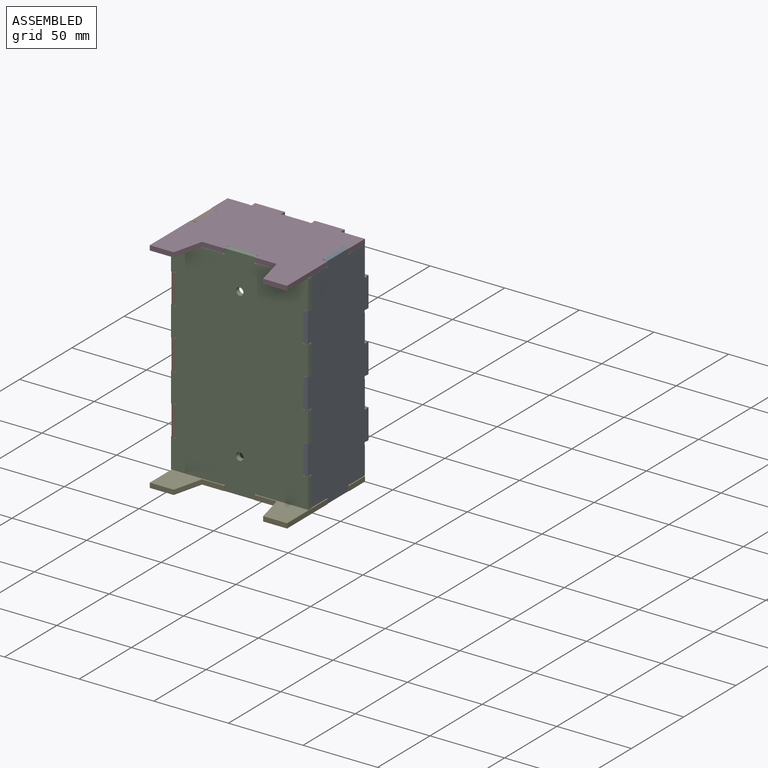
[diagram: assembled view]
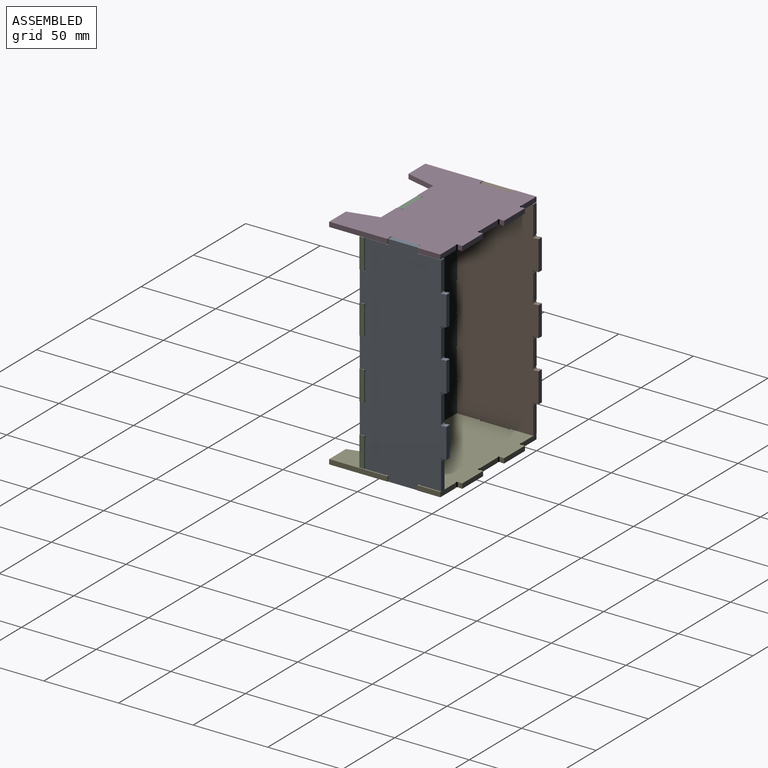
[diagram: assembled view, second angle]
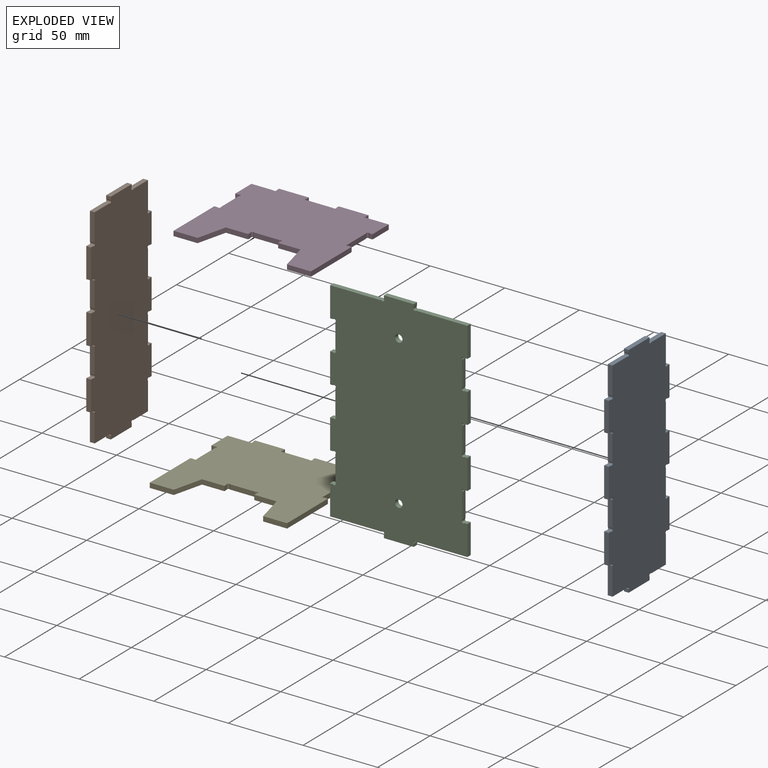
[diagram: exploded view]
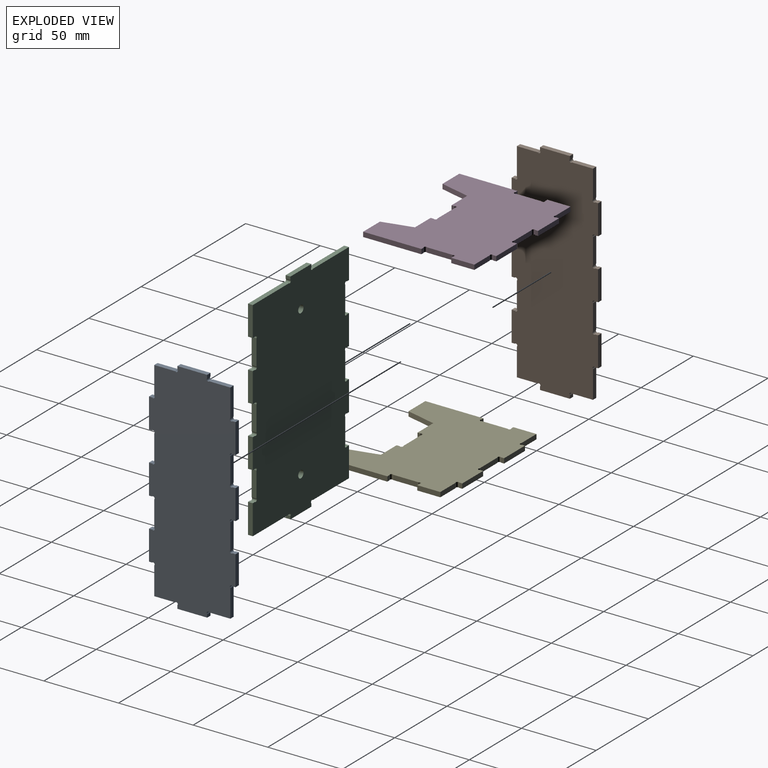
[diagram: exploded view, second angle]
ASSEMBLY  parts=5 mates=4
PART A: 54 faces, bbox 58x147x3.2 mm
  f0: plane 3.2x2.09mm, normal (0,1,0), area 6.7mm2, adj f1,f51,f52,f53
  f1: plane 20x3.2mm, normal (-1,0,0), area 64mm2, adj f0,f2,f52,f53
  f2: plane 3.2x2.08mm, normal (0,-1,0), area 6.6mm2, adj f1,f3,f52,f53
  f3: cylinder r=1.01mm len=3.2mm, axis (0,0,-1), area 10.2mm2, adj f2,f4,f52,f53
  f4: plane 17.14x3.2mm, normal (-1,0,0), area 54.9mm2, adj f3,f5,f52,f53
  f5: cylinder r=1.01mm len=3.2mm, axis (0,0,-1), area 10.2mm2, adj f4,f6,f52,f53
  f6: plane 3.2x2.08mm, normal (0,1,0), area 6.7mm2, adj f5,f7,f52,f53
  f7: plane 20x3.2mm, normal (-1,0,0), area 64mm2, adj f6,f8,f52,f53
  f8: plane 3.2x2.09mm, normal (0,-1,0), area 6.7mm2, adj f7,f9,f52,f53
  f9: extruded ~3.2x1.72mm, area 10.2mm2, adj f8,f10,f52,f53
  f10: plane 17.14x3.2mm, normal (-1,0,0), area 54.9mm2, adj f9,f11,f52,f53
  f11: extruded ~3.2x1.72mm, area 10.2mm2, adj f10,f12,f52,f53
  f12: plane 3.2x2.07mm, normal (0,1,0), area 6.6mm2, adj f11,f13,f52,f53
  f13: plane 20x3.2mm, normal (-1,0,0), area 64mm2, adj f12,f14,f52,f53
  f14: plane 3.2x2.07mm, normal (0,-1,0), area 6.6mm2, adj f13,f15,f52,f53
  f15: cylinder r=1.01mm len=3.2mm, axis (0,0,-1), area 10.2mm2, adj f14,f16,f52,f53
  f16: plane 18.57x3.2mm, normal (-1,0,0), area 59.4mm2, adj f15,f17,f52,f53
  f17: plane 14.07x3.2mm, normal (0,-1,0), area 45mm2, adj f16,f18,f52,f53
  f18: cylinder r=1.01mm len=3.2mm, axis (0,0,-1), area 10.2mm2, adj f17,f19,f52,f53
  f19: plane 3.2x2.07mm, normal (-1,0,0), area 6.6mm2, adj f18,f20,f52,f53
  f20: plane 20x3.2mm, normal (0,-1,0), area 64mm2, adj f19,f21,f52,f53
  f21: plane 3.2x2.07mm, normal (1,0,0), area 6.6mm2, adj f20,f22,f52,f53
  f22: cylinder r=1.01mm len=3.2mm, axis (0,0,-1), area 10.2mm2, adj f21,f23,f52,f53
  f23: plane 14.07x3.2mm, normal (0,-1,0), area 45mm2, adj f22,f24,f52,f53
  f24: plane 18.57x3.2mm, normal (1,0,0), area 59.4mm2, adj f23,f25,f52,f53
  f25: cylinder r=1.01mm len=3.2mm, axis (0,0,-1), area 10.2mm2, adj f24,f26,f52,f53
  f26: plane 3.2x2.07mm, normal (0,-1,0), area 6.6mm2, adj f25,f27,f52,f53
  f27: plane 20x3.2mm, normal (1,0,0), area 64mm2, adj f26,f28,f52,f53
  f28: plane 3.2x2.07mm, normal (0,1,0), area 6.6mm2, adj f27,f29,f52,f53
  f29: cylinder r=1.01mm len=3.2mm, axis (0,0,-1), area 10.2mm2, adj f28,f30,f52,f53
  f30: plane 17.14x3.2mm, normal (1,0,0), area 54.9mm2, adj f29,f31,f52,f53
  f31: cylinder r=1.01mm len=3.2mm, axis (0,0,-1), area 10.2mm2, adj f30,f32,f52,f53
  f32: plane 3.2x2.07mm, normal (0,-1,0), area 6.6mm2, adj f31,f33,f52,f53
  f33: plane 20x3.2mm, normal (1,0,0), area 64mm2, adj f32,f34,f52,f53
  f34: plane 3.2x2.07mm, normal (0,1,0), area 6.6mm2, adj f33,f35,f52,f53
  f35: cylinder r=1.01mm len=3.2mm, axis (0,0,-1), area 10.2mm2, adj f34,f36,f52,f53
  f36: plane 17.14x3.2mm, normal (1,0,0), area 54.9mm2, adj f35,f37,f52,f53
  f37: cylinder r=1.01mm len=3.2mm, axis (0,0,-1), area 10.2mm2, adj f36,f38,f52,f53
  f38: plane 3.2x2.07mm, normal (0,-1,0), area 6.6mm2, adj f37,f39,f52,f53
  f39: plane 20x3.2mm, normal (1,0,0), area 64mm2, adj f38,f40,f52,f53
  f40: plane 3.2x2.07mm, normal (0,1,0), area 6.6mm2, adj f39,f41,f52,f53
  f41: cylinder r=1.01mm len=3.2mm, axis (0,0,-1), area 10.2mm2, adj f40,f42,f52,f53
  f42: plane 18.57x3.2mm, normal (1,0,0), area 59.4mm2, adj f41,f43,f52,f53
  f43: plane 14.07x3.2mm, normal (0,1,0), area 45mm2, adj f42,f44,f52,f53
  f44: cylinder r=1.01mm len=3.2mm, axis (0,0,-1), area 10.2mm2, adj f43,f45,f52,f53
  f45: plane 3.2x2.07mm, normal (1,0,0), area 6.6mm2, adj f44,f46,f52,f53
  f46: plane 20x3.2mm, normal (0,1,0), area 64mm2, adj f45,f47,f52,f53
  f47: plane 3.2x2.07mm, normal (-1,0,0), area 6.6mm2, adj f46,f48,f52,f53
  f48: cylinder r=1.01mm len=3.2mm, axis (0,0,-1), area 10.2mm2, adj f47,f49,f52,f53
  f49: plane 14.07x3.2mm, normal (0,1,0), area 45mm2, adj f48,f50,f52,f53
  f50: plane 18.57x3.2mm, normal (-1,0,0), area 59.4mm2, adj f49,f51,f52,f53
  f51: extruded ~3.2x1.72mm, area 10.2mm2, adj f0,f50,f52,f53
  f52: plane 147x58.02mm, normal (0,0,1), area 7691.2mm2, adj f0,f1,f2,f3,f4,f5,f6,f7
  f53: plane 147x58.02mm, normal (0,0,-1), area 7691.2mm2, adj f0,f1,f2,f3,f4,f5,f6,f7
PART B: same geometry as A
PART C: 56 faces, bbox 92x147x3.2 mm
  f0: plane 20x3.2mm, normal (0,-1,0), area 64mm2, adj f1,f51,f54,f55
  f1: plane 3.2x2.07mm, normal (1,0,0), area 6.6mm2, adj f0,f2,f54,f55
  f2: cylinder r=1.01mm len=3.2mm, axis (0,0,-1), area 10.2mm2, adj f1,f3,f54,f55
  f3: plane 34.57x3.2mm, normal (0,-1,0), area 110.6mm2, adj f2,f4,f54,f55
  f4: plane 20x3.2mm, normal (1,0,0), area 64mm2, adj f3,f5,f54,f55
  f5: plane 3.2x2.07mm, normal (0,1,0), area 6.6mm2, adj f4,f6,f54,f55
  f6: cylinder r=1.01mm len=3.2mm, axis (0,0,-1), area 10.2mm2, adj f5,f7,f54,f55
  f7: plane 17.14x3.2mm, normal (1,0,0), area 54.9mm2, adj f6,f8,f54,f55
  f8: cylinder r=1.01mm len=3.2mm, axis (0,0,-1), area 10.2mm2, adj f7,f9,f54,f55
  f9: plane 3.2x2.07mm, normal (0,-1,0), area 6.6mm2, adj f8,f10,f54,f55
  f10: plane 20x3.2mm, normal (1,0,0), area 64mm2, adj f9,f11,f54,f55
  f11: plane 3.2x2.07mm, normal (0,1,0), area 6.6mm2, adj f10,f12,f54,f55
  f12: cylinder r=1.01mm len=3.2mm, axis (0,0,-1), area 10.2mm2, adj f11,f13,f54,f55
  f13: plane 17.14x3.2mm, normal (1,0,0), area 54.9mm2, adj f12,f14,f54,f55
  f14: cylinder r=1.01mm len=3.2mm, axis (0,0,-1), area 10.2mm2, adj f13,f15,f54,f55
  f15: plane 3.2x2.07mm, normal (0,-1,0), area 6.6mm2, adj f14,f16,f54,f55
  f16: plane 20x3.2mm, normal (1,0,0), area 64mm2, adj f15,f17,f54,f55
  f17: plane 3.2x2.07mm, normal (0,1,0), area 6.6mm2, adj f16,f18,f54,f55
  f18: cylinder r=1.01mm len=3.2mm, axis (0,0,-1), area 10.2mm2, adj f17,f19,f54,f55
  f19: plane 17.14x3.2mm, normal (1,0,0), area 54.9mm2, adj f18,f20,f54,f55
  f20: cylinder r=1.01mm len=3.2mm, axis (0,0,-1), area 10.2mm2, adj f19,f21,f54,f55
  f21: plane 3.2x2.07mm, normal (0,-1,0), area 6.6mm2, adj f20,f22,f54,f55
  f22: plane 20x3.2mm, normal (1,0,0), area 64mm2, adj f21,f23,f54,f55
  f23: plane 34.57x3.2mm, normal (0,1,0), area 110.6mm2, adj f22,f24,f54,f55
  f24: cylinder r=1.01mm len=3.2mm, axis (0,0,-1), area 10.2mm2, adj f23,f25,f54,f55
  f25: plane 3.2x2.07mm, normal (1,0,0), area 6.6mm2, adj f24,f26,f54,f55
  f26: plane 20x3.2mm, normal (0,1,0), area 64mm2, adj f25,f27,f54,f55
  f27: plane 3.2x2.07mm, normal (-1,0,0), area 6.6mm2, adj f26,f28,f54,f55
  f28: cylinder r=1.01mm len=3.2mm, axis (0,0,-1), area 10.2mm2, adj f27,f29,f54,f55
  f29: plane 34.57x3.2mm, normal (0,1,0), area 110.6mm2, adj f28,f30,f54,f55
  f30: plane 20x3.2mm, normal (-1,0,0), area 64mm2, adj f29,f31,f54,f55
  f31: plane 3.2x2.07mm, normal (0,-1,0), area 6.6mm2, adj f30,f32,f54,f55
  f32: cylinder r=1.01mm len=3.2mm, axis (0,0,-1), area 10.2mm2, adj f31,f33,f54,f55
  f33: plane 17.14x3.2mm, normal (-1,0,0), area 54.9mm2, adj f32,f34,f54,f55
  f34: cylinder r=1.01mm len=3.2mm, axis (0,0,-1), area 10.2mm2, adj f33,f35,f54,f55
  f35: plane 3.2x2.07mm, normal (0,1,0), area 6.6mm2, adj f34,f36,f54,f55
  f36: plane 20x3.2mm, normal (-1,0,0), area 64mm2, adj f35,f37,f54,f55
  f37: plane 3.2x2.07mm, normal (0,-1,0), area 6.6mm2, adj f36,f38,f54,f55
  f38: cylinder r=1.01mm len=3.2mm, axis (0,0,-1), area 10.2mm2, adj f37,f39,f54,f55
  f39: plane 17.14x3.2mm, normal (-1,0,0), area 54.9mm2, adj f38,f40,f54,f55
  f40: cylinder r=1.01mm len=3.2mm, axis (0,0,-1), area 10.2mm2, adj f39,f41,f54,f55
  f41: plane 3.2x2.07mm, normal (0,1,0), area 6.6mm2, adj f40,f42,f54,f55
  f42: plane 20x3.2mm, normal (-1,0,0), area 64mm2, adj f41,f43,f54,f55
  f43: plane 3.2x2.07mm, normal (0,-1,0), area 6.6mm2, adj f42,f44,f54,f55
  f44: cylinder r=1.01mm len=3.2mm, axis (0,0,-1), area 10.2mm2, adj f43,f45,f54,f55
  f45: plane 17.14x3.2mm, normal (-1,0,0), area 54.9mm2, adj f44,f46,f54,f55
  f46: cylinder r=1.01mm len=3.2mm, axis (0,0,-1), area 10.2mm2, adj f45,f47,f54,f55
  f47: plane 3.2x2.07mm, normal (0,1,0), area 6.6mm2, adj f46,f48,f54,f55
  f48: plane 20x3.2mm, normal (-1,0,0), area 64mm2, adj f47,f49,f54,f55
  f49: plane 34.57x3.2mm, normal (0,-1,0), area 110.6mm2, adj f48,f50,f54,f55
  f50: cylinder r=1.01mm len=3.2mm, axis (0,0,-1), area 10.2mm2, adj f49,f51,f54,f55
  f51: plane 3.2x2.07mm, normal (-1,0,0), area 6.6mm2, adj f0,f50,f54,f55
  f52: cylinder r=2.5mm len=5mm, axis (0,0,-1), area 50.3mm2, adj f54,f55
  f53: cylinder r=2.5mm len=5mm, axis (0,0,-1), area 50.3mm2, adj f54,f55
  f54: plane 147x92mm, normal (0,0,1), area 12551.4mm2, adj f0,f1,f2,f3,f4,f5,f6,f7
  f55: plane 147x92mm, normal (0,0,-1), area 12551.4mm2, adj f0,f1,f2,f3,f4,f5,f6,f7
PART D: 41 faces, bbox 92x78x3.2 mm
  f0: plane 15x3.2mm, normal (0,-1,0), area 48mm2, adj f1,f38,f39,f40
  f1: plane 3.2x2.07mm, normal (1,0,0), area 6.6mm2, adj f0,f2,f39,f40
  f2: cylinder r=1.01mm len=3.2mm, axis (0,0,-1), area 10.2mm2, adj f1,f3,f39,f40
  f3: plane 17.14x3.2mm, normal (0,-1,0), area 54.9mm2, adj f2,f4,f39,f40
  f4: cylinder r=1.01mm len=3.2mm, axis (0,0,-1), area 10.2mm2, adj f3,f5,f39,f40
  f5: plane 3.2x2.07mm, normal (-1,0,0), area 6.6mm2, adj f4,f6,f39,f40
  f6: plane 15x3.2mm, normal (0,-1,0), area 48mm2, adj f5,f7,f39,f40
  f7: plane 20x4.94mm, normal (-0.97,-0.24,0), area 65.9mm2, adj f6,f8,f39,f40
  f8: plane 16.06x3.2mm, normal (0,-1,0), area 51.4mm2, adj f7,f9,f39,f40
  f9: plane 39x3.2mm, normal (1,0,0), area 124.8mm2, adj f8,f10,f39,f40
  f10: plane 3.2x2.07mm, normal (0,1,0), area 6.6mm2, adj f9,f11,f39,f40
  f11: cylinder r=1.01mm len=3.2mm, axis (0,0,-1), area 10.2mm2, adj f10,f12,f39,f40
  f12: plane 17.14x3.2mm, normal (1,0,0), area 54.9mm2, adj f11,f13,f39,f40
  f13: cylinder r=1.01mm len=3.2mm, axis (0,0,-1), area 10.2mm2, adj f12,f14,f39,f40
  f14: plane 3.2x2.07mm, normal (0,-1,0), area 6.6mm2, adj f13,f15,f39,f40
  f15: plane 15.5x3.2mm, normal (1,0,0), area 49.6mm2, adj f14,f16,f39,f40
  f16: plane 14.57x3.2mm, normal (0,1,0), area 46.6mm2, adj f15,f17,f39,f40
  f17: cylinder r=1.01mm len=3.2mm, axis (0,0,-1), area 10.2mm2, adj f16,f18,f39,f40
  f18: plane 3.2x2.07mm, normal (1,0,0), area 6.6mm2, adj f17,f19,f39,f40
  f19: plane 20x3.2mm, normal (0,1,0), area 64mm2, adj f18,f20,f39,f40
  f20: plane 3.2x2.07mm, normal (-1,0,0), area 6.6mm2, adj f19,f21,f39,f40
  f21: cylinder r=1.01mm len=3.2mm, axis (0,0,-1), area 10.2mm2, adj f20,f22,f39,f40
  f22: plane 17.14x3.2mm, normal (0,1,0), area 54.9mm2, adj f21,f23,f39,f40
  f23: cylinder r=1.01mm len=3.2mm, axis (0,0,-1), area 10.2mm2, adj f22,f24,f39,f40
  f24: plane 3.2x2.07mm, normal (1,0,0), area 6.6mm2, adj f23,f25,f39,f40
  f25: plane 20x3.2mm, normal (0,1,0), area 64mm2, adj f24,f26,f39,f40
  f26: plane 3.2x2.07mm, normal (-1,0,0), area 6.6mm2, adj f25,f27,f39,f40
  f27: cylinder r=1.01mm len=3.2mm, axis (0,0,-1), area 10.2mm2, adj f26,f28,f39,f40
  f28: plane 14.57x3.2mm, normal (0,1,0), area 46.6mm2, adj f27,f29,f39,f40
  f29: plane 15.5x3.2mm, normal (-1,0,0), area 49.6mm2, adj f28,f30,f39,f40
  f30: plane 3.2x2.07mm, normal (0,-1,0), area 6.6mm2, adj f29,f31,f39,f40
  f31: cylinder r=1.01mm len=3.2mm, axis (0,0,-1), area 10.2mm2, adj f30,f32,f39,f40
  f32: plane 17.15x3.2mm, normal (-1,0,0), area 54.9mm2, adj f31,f33,f39,f40
  f33: cylinder r=1.01mm len=3.2mm, axis (0,0,-1), area 10.2mm2, adj f32,f34,f39,f40
  f34: plane 3.2x2.07mm, normal (0,1,0), area 6.6mm2, adj f33,f35,f39,f40
  f35: plane 25.99x3.2mm, normal (-1,0,0), area 83.2mm2, adj f34,f36,f39,f40
  f36: plane 13x3.2mm, normal (-1,0,0), area 41.6mm2, adj f35,f37,f39,f40
  f37: plane 16.11x3.2mm, normal (0,-1,0), area 51.5mm2, adj f36,f38,f39,f40
  f38: plane 20x4.94mm, normal (0.97,-0.24,0), area 65.9mm2, adj f0,f37,f39,f40
  f39: plane 92.04x78mm, normal (0,0,1), area 5679.7mm2, adj f0,f1,f2,f3,f4,f5,f6,f7
  f40: plane 92.04x78mm, normal (0,0,-1), area 5679.7mm2, adj f0,f1,f2,f3,f4,f5,f6,f7
PART E: same geometry as D
PLACE A rot(axis=(0.58,0.58,0.58),120deg) t=(-18.58,-0.2,-103.72)mm
PLACE B rot(axis=(-0.58,-0.58,0.58),120deg) t=(-103.58,-0.2,-21.72)mm
PLACE C rot(axis=(-1,0,0),90deg) t=(-61.09,-109.2,-21.72)mm
PLACE D t=(-5.08,-15,7.58)mm fixed
PLACE E t=(-5.08,-15,-136.22)mm
MATE fastened D.f3 <-> C.f54  axis (0,-1,0) through (-61.08,-106,9.18)mm
MATE fastened B.f53 <-> C.f39  axis (1,0,0) through (-103.58,-107.6,-62.72)mm
MATE fastened C.f54 <-> E.f3  axis (0,1,0) through (-61.08,-106,-136.22)mm
MATE fastened A.f53 <-> C.f13  axis (-1,0,0) through (-18.58,-107.6,-62.72)mm
